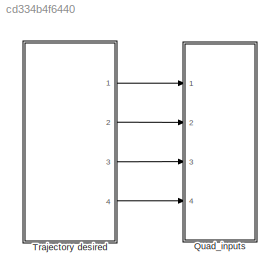
MODEL slx_cd334b4f6440
KIND model
CONFIG AbsTol = auto
CONFIG EnableMultiTasking = off
CONFIG FixedStep = 0.1
CONFIG MaxStep = auto
CONFIG MinStep = auto
CONFIG RelTol = 1e-3
CONFIG SampleTimeConstraint = Unconstrained
CONFIG Solver = FixedStepAuto
CONFIG SolverName = FixedStepAuto
CONFIG StartTime = 0.0
CONFIG StopTime = 500
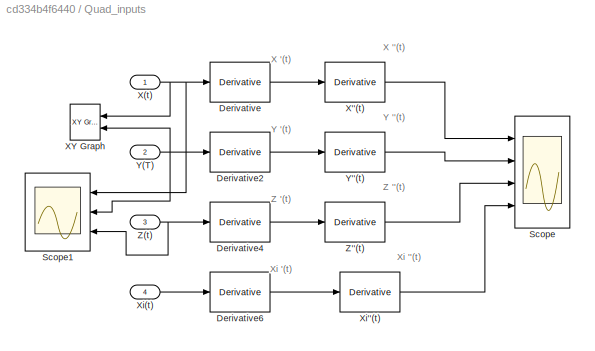
BLOCK [SubSystem] Quad_inputs
  Ports = [4]
  RequestExecContextInheritance = off
  Variant = off
BLOCK [Derivative] Quad_inputs/Derivative
BLOCK [Derivative] Quad_inputs/Derivative2
BLOCK [Derivative] Quad_inputs/Derivative4
BLOCK [Derivative] Quad_inputs/Derivative6
BLOCK [Scope] Quad_inputs/Scope
  NumInputPorts = 4
  Ports = [4]
  ScopeSpecificationString = Simulink.scopes.TimeScopeBlockCfg('CurrentConfiguration', extmgr.ConfigurationSet(extmgr.Configuration('Core','General UI',true),extmgr.Configuration('Core','Source UI',true),extmgr.Configuration('Sources','WiredSimulink',true),extmgr.Configuration('Visuals','Time Domain',true,'SerializedDisplays',{struct('MinYLimReal','-3.125','MaxYLimReal','3.125','YLabelReal','','MinYLimMag','0.00000','MaxYLimM...<+3442ch>
BLOCK [Scope] Quad_inputs/Scope1
  NumInputPorts = 3
  Ports = [3]
  ScopeSpecificationString = Simulink.scopes.TimeScopeBlockCfg('CurrentConfiguration', extmgr.ConfigurationSet(extmgr.Configuration('Core','General UI',true),extmgr.Configuration('Core','Source UI',true),extmgr.Configuration('Sources','WiredSimulink',true,'DataLoggingVariableName','ScopeData1'),extmgr.Configuration('Visuals','Time Domain',true,'SerializedDisplays',{struct('MinYLimReal','-1.875','MaxYLimReal','16.875','YLabelR...<+2786ch>
BLOCK [Derivative] Quad_inputs/X''(t)
BLOCK [Inport] Quad_inputs/X(t)
  IconDisplay = Port number
BLOCK [Reference] Quad_inputs/XY Graph  REF=simulink/Sinks/XY Graph
  Ports = [2]
  SourceBlock = simulink/Sinks/XY Graph
  SourceProductBaseCode = SL
  SourceProductName = Simulink
  SourceType = XY scope.
BLOCK [Derivative] Quad_inputs/Xi''(t)
BLOCK [Inport] Quad_inputs/Xi(t)
  IconDisplay = Port number
  Port = 4
BLOCK [Derivative] Quad_inputs/Y''(t)
BLOCK [Inport] Quad_inputs/Y(T)
  IconDisplay = Port number
  Port = 2
BLOCK [Derivative] Quad_inputs/Z''(t)
BLOCK [Inport] Quad_inputs/Z(t)
  IconDisplay = Port number
  Port = 3
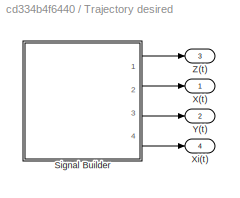
BLOCK [SubSystem] Trajectory desired
  Ports = [0, 4]
  RequestExecContextInheritance = off
  Variant = off
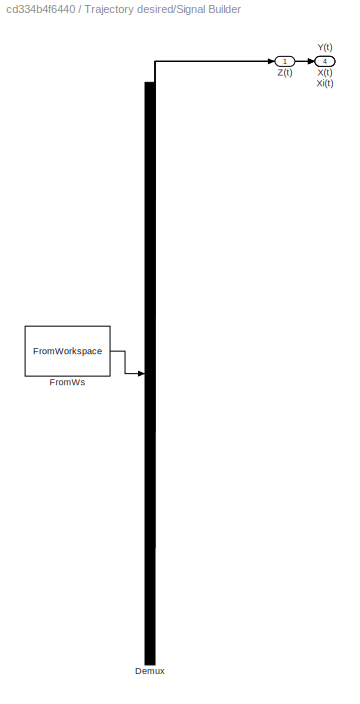
BLOCK [SubSystem] Trajectory desired/Signal Builder
  ClipboardFcn = sigbuilder_block('clipboard');
  CloseFcn = sigbuilder_block('close');
  ContinueFcn = sigbuilder_block('continue');
  CopyFcn = sigbuilder_block('copy');
  DeleteFcn = sigbuilder_block('delete');
  LoadFcn = sigbuilder_block('load');
  MaskHideContents = on
  ModelCloseFcn = sigbuilder_block('modelClose');
  NameChangeFcn = sigbuilder_block('namechange');
  OpenFcn = sigbuilder_block('open',[0 30 1024.5 488.25 ]);
  PauseFcn = sigbuilder_block('pause');
  Ports = [0, 4]
  PreSaveFcn = sigbuilder_block('preSave');
  RequestExecContextInheritance = off
  StartFcn = sigbuilder_block('start');
  StopFcn = sigbuilder_block('stop');
  Tag = STV Subsys
  Variant = off
BLOCK [Demux] Trajectory desired/Signal Builder/Demux
  Ports = [1, 4]
  Tag = STV Demux
BLOCK [FromWorkspace] Trajectory desired/Signal Builder/FromWs
  SampleTime = 0
  Tag = STV FromWs
  VariableName = tuvar
  ZeroCross = on
BLOCK [Outport] Trajectory desired/Signal Builder/X(t)
  IconDisplay = Port number
  Port = 2
  Tag = STV Outport
BLOCK [Outport] Trajectory desired/Signal Builder/Xi(t)
  IconDisplay = Port number
  Port = 4
  Tag = STV Outport
BLOCK [Outport] Trajectory desired/Signal Builder/Y(t)
  IconDisplay = Port number
  Port = 3
  Tag = STV Outport
BLOCK [Outport] Trajectory desired/Signal Builder/Z(t)
  IconDisplay = Port number
  Tag = STV Outport
BLOCK [Outport] Trajectory desired/X(t)
  IconDisplay = Port number
BLOCK [Outport] Trajectory desired/Xi(t)
  IconDisplay = Port number
  Port = 4
BLOCK [Outport] Trajectory desired/Y(t)
  IconDisplay = Port number
  Port = 2
BLOCK [Outport] Trajectory desired/Z(t)
  IconDisplay = Port number
  Port = 3
ANNOTATION Quad_inputs: X ''(t)
ANNOTATION Quad_inputs: X '(t)
ANNOTATION Quad_inputs: Xi ''(t)
ANNOTATION Quad_inputs: Xi '(t)
ANNOTATION Quad_inputs: Y ''(t)
ANNOTATION Quad_inputs: Y '(t)
ANNOTATION Quad_inputs: Z ''(t)
ANNOTATION Quad_inputs: Z '(t)
LINE Quad_inputs/Derivative2:1 -> Quad_inputs/Y''(t):1
LINE Quad_inputs/Derivative4:1 -> Quad_inputs/Z''(t):1
LINE Quad_inputs/Derivative6:1 -> Quad_inputs/Xi''(t):1
LINE Quad_inputs/Derivative:1 -> Quad_inputs/X''(t):1
LINE Quad_inputs/X''(t):1 -> Quad_inputs/Scope:1
NET Quad_inputs/X(t):1 -> Quad_inputs/Derivative:1, Quad_inputs/Scope1:1, Quad_inputs/XY Graph:1
LINE Quad_inputs/Xi''(t):1 -> Quad_inputs/Scope:4
LINE Quad_inputs/Xi(t):1 -> Quad_inputs/Derivative6:1
LINE Quad_inputs/Y''(t):1 -> Quad_inputs/Scope:2
NET Quad_inputs/Y(T):1 -> Quad_inputs/Derivative2:1, Quad_inputs/Scope1:2, Quad_inputs/XY Graph:2
LINE Quad_inputs/Z''(t):1 -> Quad_inputs/Scope:3
NET Quad_inputs/Z(t):1 -> Quad_inputs/Derivative4:1, Quad_inputs/Scope1:3
LINE Trajectory desired/Signal Builder:1 -> Trajectory desired/Z(t):1
LINE Trajectory desired/Signal Builder:2 -> Trajectory desired/X(t):1
LINE Trajectory desired/Signal Builder:3 -> Trajectory desired/Y(t):1
LINE Trajectory desired/Signal Builder:4 -> Trajectory desired/Xi(t):1
LINE Trajectory desired:1 -> Quad_inputs:1
LINE Trajectory desired:2 -> Quad_inputs:2
LINE Trajectory desired:3 -> Quad_inputs:3
LINE Trajectory desired:4 -> Quad_inputs:4
note: NET lines group one-source signal fan-out (src -> all destinations, sorted); 1:1 wires keep LINE
